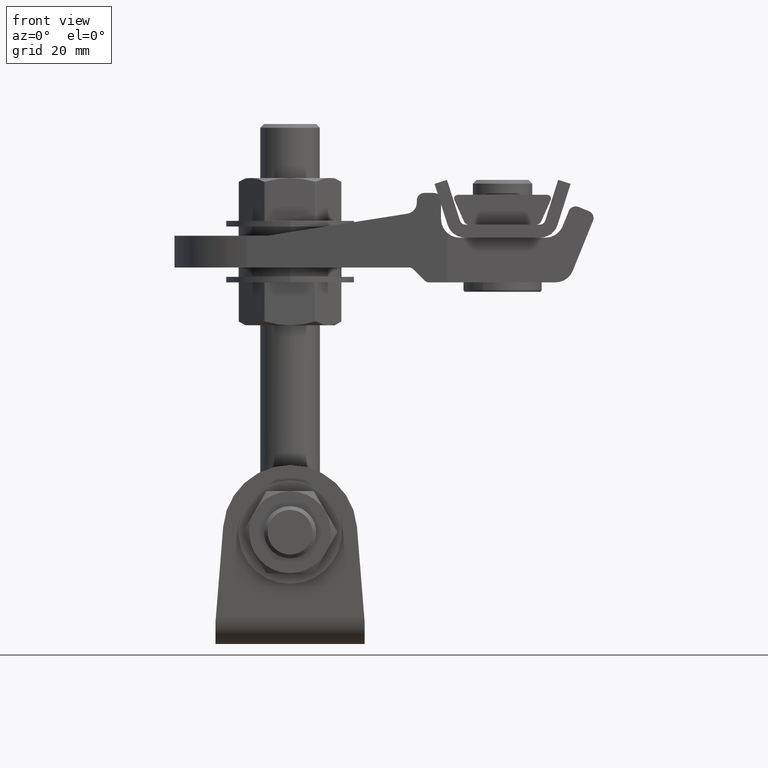
[diagram: clean part render]
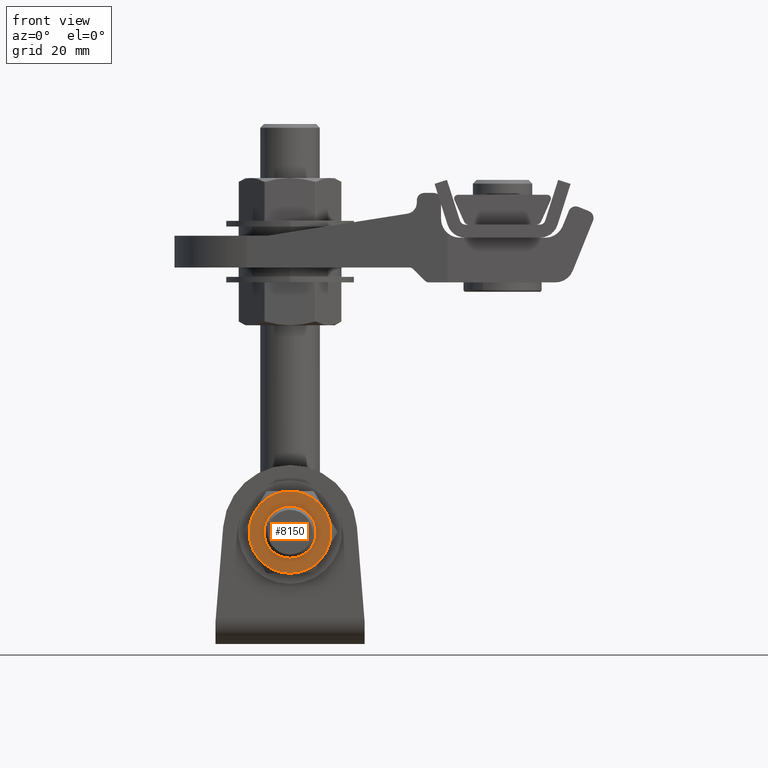
[diagram: same view with one face highlighted and labeled with its STEP entity id]
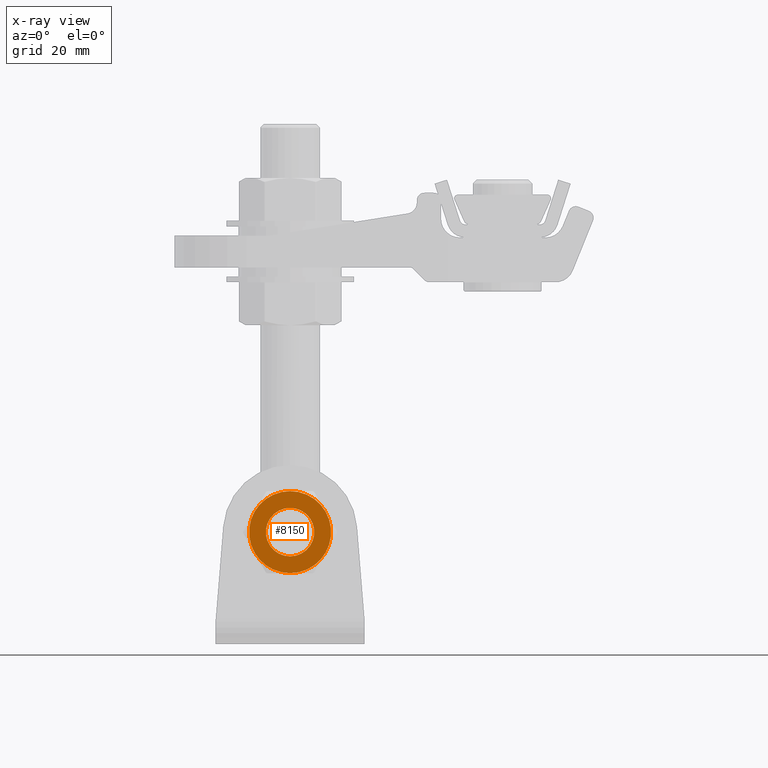
[diagram: x-ray of the same camera — body ghosted, the highlighted face saturated]
A machine part, front view. The second image highlights one B-rep face of the part: STEP entity #8150.
The next image is the same camera in x-ray: the body ghosted, the highlighted face saturated — about 0% of this face is hidden behind the body in this view.
In plain terms, the highlighted planar face has unit normal (0, 1, 0).
Its self-contained STEP definition (entity closure, byte-faithful):
#763 = DIRECTION ( 'NONE',  ( 0.000000000000000000, 0.000000000000000000, -1.000000000000000000 ) ) ;
#819 = CARTESIAN_POINT ( 'NONE',  ( 9.526279441628823008, -4.000000000000000000, -5.500000000000003553 ) ) ;
#856 = CIRCLE ( 'NONE', #20592, 6.499999999999995559 ) ;
#924 = EDGE_CURVE ( 'NONE', #9357, #10607, #18583, .T. ) ;
#1464 = EDGE_LOOP ( 'NONE', ( #6426 ) ) ;
#1662 = ORIENTED_EDGE ( 'NONE', *, *, #19718, .T. ) ;
#2581 = VERTEX_POINT ( 'NONE', #3651 ) ;
#2593 = DIRECTION ( 'NONE',  ( -0.000000000000000000, -1.000000000000000000, -0.000000000000000000 ) ) ;
#2658 = DIRECTION ( 'NONE',  ( 0.000000000000000000, 0.000000000000000000, 1.000000000000000000 ) ) ;
#2757 = ORIENTED_EDGE ( 'NONE', *, *, #12865, .T. ) ;
#3028 = DIRECTION ( 'NONE',  ( -0.000000000000000000, -1.000000000000000000, -0.000000000000000000 ) ) ;
#3111 = CIRCLE ( 'NONE', #8753, 11.00000000000000000 ) ;
#3651 = CARTESIAN_POINT ( 'NONE',  ( -9.526279441628824785, -4.000000000000000000, 5.500000000000001776 ) ) ;
#3854 = AXIS2_PLACEMENT_3D ( 'NONE', #12366, #10890, #9194 ) ;
#4231 = EDGE_CURVE ( 'NONE', #8694, #8913, #6470, .T. ) ;
#4500 = CARTESIAN_POINT ( 'NONE',  ( -9.526279441628826561, -4.000000000000000000, -5.499999999999999112 ) ) ;
#4650 = DIRECTION ( 'NONE',  ( 1.776356839400250465E-15, 0.000000000000000000, 1.000000000000000000 ) ) ;
#4876 = DIRECTION ( 'NONE',  ( -0.000000000000000000, -1.000000000000000000, -0.000000000000000000 ) ) ;
#5121 = FACE_OUTER_BOUND ( 'NONE', #13931, .T. ) ;
#6426 = ORIENTED_EDGE ( 'NONE', *, *, #16947, .T. ) ;
#6470 = CIRCLE ( 'NONE', #18912, 11.00000000000000000 ) ;
#6504 = DIRECTION ( 'NONE',  ( -3.552713678800500929E-15, 0.000000000000000000, 1.000000000000000000 ) ) ;
#6578 = DIRECTION ( 'NONE',  ( 0.000000000000000000, 1.000000000000000000, 0.000000000000000000 ) ) ;
#7135 = FACE_BOUND ( 'NONE', #1464, .T. ) ;
#8082 = CARTESIAN_POINT ( 'NONE',  ( 0.000000000000000000, -4.000000000000000000, 6.499999999999995559 ) ) ;
#8108 = DIRECTION ( 'NONE',  ( 0.000000000000000000, -0.000000000000000000, 1.000000000000000000 ) ) ;
#8150 = ADVANCED_FACE ( 'NONE', ( #7135, #5121 ), #17662, .F. ) ;
#8246 = CARTESIAN_POINT ( 'NONE',  ( 0.000000000000000000, -4.000000000000000000, 0.000000000000000000 ) ) ;
#8311 = CARTESIAN_POINT ( 'NONE',  ( -1.502314598737160017E-15, -4.000000000000000000, -11.00000000000000000 ) ) ;
#8694 = VERTEX_POINT ( 'NONE', #8311 ) ;
#8753 = AXIS2_PLACEMENT_3D ( 'NONE', #17293, #2593, #2658 ) ;
#8913 = VERTEX_POINT ( 'NONE', #819 ) ;
#8954 = DIRECTION ( 'NONE',  ( 0.000000000000000000, 1.000000000000000000, 0.000000000000000000 ) ) ;
#9194 = DIRECTION ( 'NONE',  ( 0.000000000000000000, 0.000000000000000000, 1.000000000000000000 ) ) ;
#9357 = VERTEX_POINT ( 'NONE', #13925 ) ;
#9779 = AXIS2_PLACEMENT_3D ( 'NONE', #13376, #16721, #14914 ) ;
#9937 = CIRCLE ( 'NONE', #9967, 11.00000000000000000 ) ;
#9967 = AXIS2_PLACEMENT_3D ( 'NONE', #18832, #3028, #4650 ) ;
#10149 = ORIENTED_EDGE ( 'NONE', *, *, #18497, .T. ) ;
#10607 = VERTEX_POINT ( 'NONE', #16318 ) ;
#10642 = ORIENTED_EDGE ( 'NONE', *, *, #924, .T. ) ;
#10890 = DIRECTION ( 'NONE',  ( -0.000000000000000000, -1.000000000000000000, -0.000000000000000000 ) ) ;
#11258 = ORIENTED_EDGE ( 'NONE', *, *, #13888, .T. ) ;
#12366 = CARTESIAN_POINT ( 'NONE',  ( 0.000000000000000000, -4.000000000000000000, 0.000000000000000000 ) ) ;
#12865 = EDGE_CURVE ( 'NONE', #15590, #8694, #17811, .T. ) ;
#13376 = CARTESIAN_POINT ( 'NONE',  ( 0.000000000000000000, -4.000000000000000000, 0.000000000000000000 ) ) ;
#13888 = EDGE_CURVE ( 'NONE', #2581, #15590, #19052, .T. ) ;
#13925 = CARTESIAN_POINT ( 'NONE',  ( 9.526279441628826561, -4.000000000000000000, 5.499999999999999112 ) ) ;
#13931 = EDGE_LOOP ( 'NONE', ( #10642, #1662, #11258, #2757, #20622, #10149 ) ) ;
#14134 = VERTEX_POINT ( 'NONE', #8082 ) ;
#14914 = DIRECTION ( 'NONE',  ( 1.776356839400250465E-15, 0.000000000000000000, 1.000000000000000000 ) ) ;
#15203 = CARTESIAN_POINT ( 'NONE',  ( 0.000000000000000000, -4.000000000000000000, 0.000000000000000000 ) ) ;
#15590 = VERTEX_POINT ( 'NONE', #4500 ) ;
#16318 = CARTESIAN_POINT ( 'NONE',  ( 0.000000000000000000, -4.000000000000000000, 11.00000000000000000 ) ) ;
#16721 = DIRECTION ( 'NONE',  ( -0.000000000000000000, -1.000000000000000000, -0.000000000000000000 ) ) ;
#16798 = CARTESIAN_POINT ( 'NONE',  ( 0.000000000000000000, -4.000000000000000000, 0.000000000000000000 ) ) ;
#16947 = EDGE_CURVE ( 'NONE', #14134, #14134, #856, .T. ) ;
#17083 = DIRECTION ( 'NONE',  ( 0.000000000000000000, 0.000000000000000000, 1.000000000000000000 ) ) ;
#17293 = CARTESIAN_POINT ( 'NONE',  ( 0.000000000000000000, -4.000000000000000000, 0.000000000000000000 ) ) ;
#17662 = PLANE ( 'NONE',  #17912 ) ;
#17811 = CIRCLE ( 'NONE', #9779, 11.00000000000000000 ) ;
#17877 = CARTESIAN_POINT ( 'NONE',  ( 0.000000000000000000, -4.000000000000000000, 0.000000000000000000 ) ) ;
#17912 = AXIS2_PLACEMENT_3D ( 'NONE', #17877, #6578, #8108 ) ;
#18419 = DIRECTION ( 'NONE',  ( 0.000000000000000000, -1.000000000000000000, 0.000000000000000000 ) ) ;
#18497 = EDGE_CURVE ( 'NONE', #8913, #9357, #9937, .T. ) ;
#18583 = CIRCLE ( 'NONE', #20677, 11.00000000000000000 ) ;
#18832 = CARTESIAN_POINT ( 'NONE',  ( 0.000000000000000000, -4.000000000000000000, 0.000000000000000000 ) ) ;
#18912 = AXIS2_PLACEMENT_3D ( 'NONE', #16798, #18419, #763 ) ;
#19052 = CIRCLE ( 'NONE', #3854, 11.00000000000000000 ) ;
#19718 = EDGE_CURVE ( 'NONE', #10607, #2581, #3111, .T. ) ;
#20592 = AXIS2_PLACEMENT_3D ( 'NONE', #15203, #8954, #17083 ) ;
#20622 = ORIENTED_EDGE ( 'NONE', *, *, #4231, .T. ) ;
#20677 = AXIS2_PLACEMENT_3D ( 'NONE', #8246, #4876, #6504 ) ;